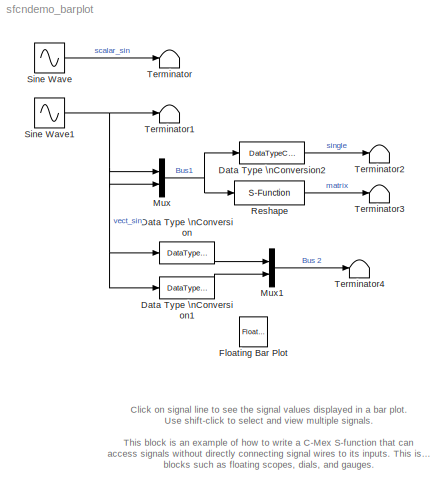
MODEL sfcndemo_barplot
KIND model
BLOCK [DataTypeConversion] Data Type \nConversion
  OutDataTypeMode = int32
BLOCK [DataTypeConversion] Data Type \nConversion1
  OutDataTypeMode = int32
BLOCK [DataTypeConversion] Data Type \nConversion2
  OutDataTypeMode = single
BLOCK [Reference] Floating Bar Plot  REF=simulink_extras/Additional\nSinks/Floating Bar Plot
  Ports = []
  SourceBlock = simulink_extras/Additional\nSinks/Floating Bar Plot
  SourceType = Floating Bar Plot
  yLim = [-6 6  -5 5  -5 5  -5 5  -5 5  -5 5  -5 5  -5 5  -5 5  -5 5  -5 5]
BLOCK [Mux] Mux
  DisplayOption = bar
  Inputs = 2
  Ports = [2, 1]
BLOCK [Mux] Mux1
  DisplayOption = bar
  Inputs = 2
  Ports = [2, 1]
BLOCK [S-Function] Reshape
  FunctionName = sreshape
  Parameters = 4,[4,3]
  Ports = [1, 1]
BLOCK [Sin] Sine Wave
  Ports = [0, 1]
  SampleTime = 0
BLOCK [Sin] Sine Wave1
  Amplitude = 1:6
  Phase = [0 pi/16 pi/8 pi/4 pi/2 pi ]
  Ports = [0, 1]
  SampleTime = 0
BLOCK [Terminator] Terminator
BLOCK [Terminator] Terminator1
BLOCK [Terminator] Terminator2
BLOCK [Terminator] Terminator3
BLOCK [Terminator] Terminator4
ANNOTATION (root): Click on signal line to see the signal values displayed in a bar plot.\nUse shift-click to select and view multiple signals.\n\nThis block is an example of how to write a C-Mex S-function that can\naccess signals without directly connecting signal wires to its inputs. This is useful for data viewing\nblocks such as floating scopes, dials, and gauges.
LINE Data Type \nConversion1:1 -> Mux1:2
LINE Data Type \nConversion2:1 -> Terminator2:1
LINE Data Type \nConversion:1 -> Mux1:1
LINE Mux1:1 -> Terminator4:1
NET Mux:1 -> Data Type \nConversion2:1, Reshape:1
LINE Reshape:1 -> Terminator3:1
NET Sine Wave1:1 -> Data Type \nConversion1:1, Data Type \nConversion:1, Mux:1, Mux:2, Terminator1:1
LINE Sine Wave:1 -> Terminator:1
note: NET lines group one-source signal fan-out (src -> all destinations, sorted); 1:1 wires keep LINE
